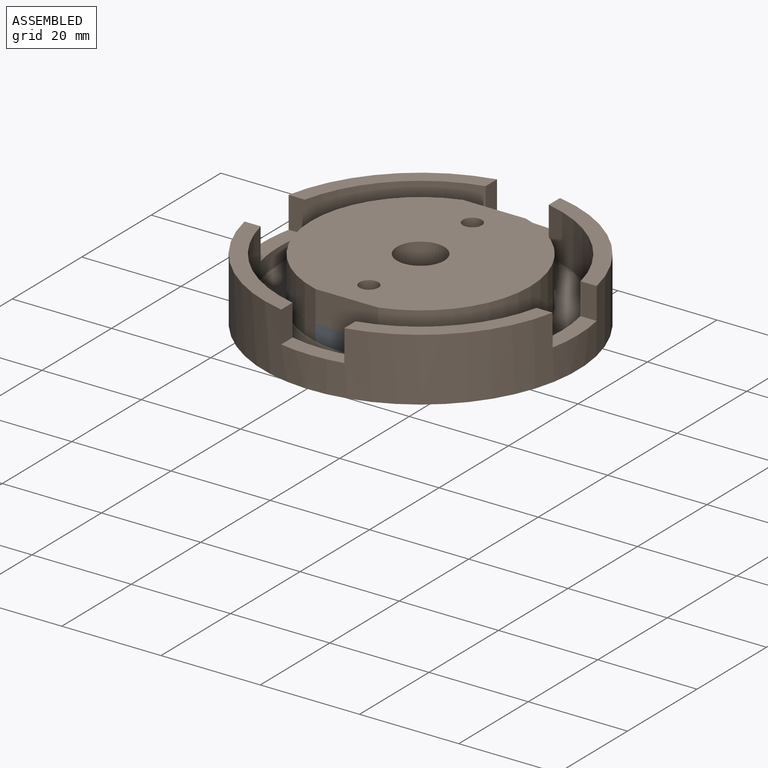
[diagram: assembled view]
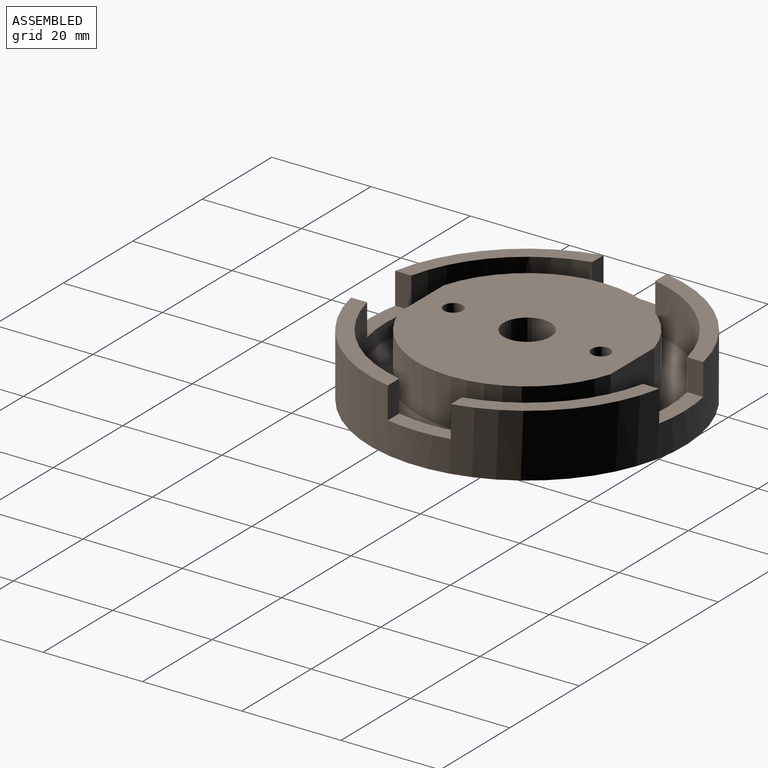
[diagram: assembled view, second angle]
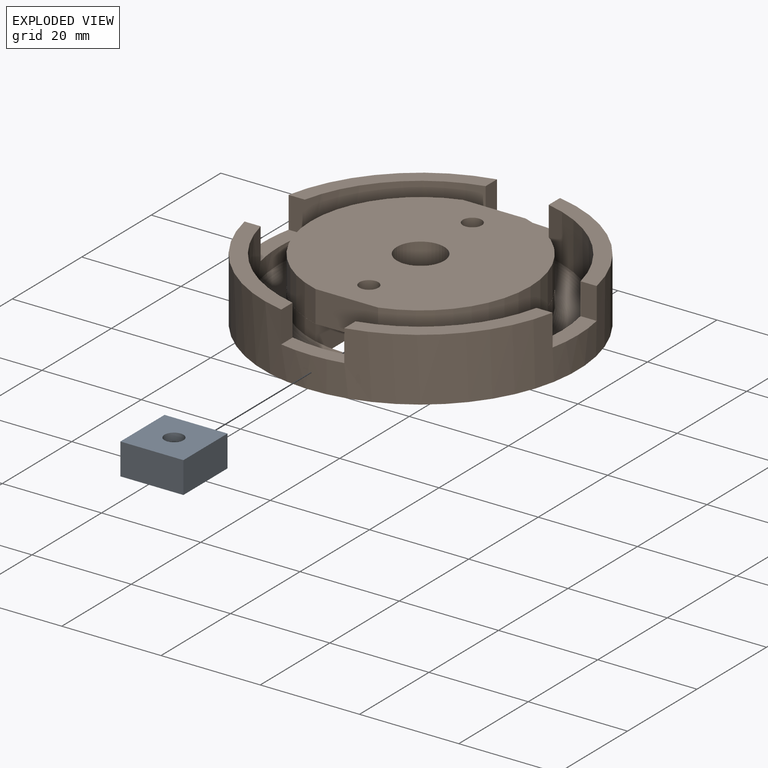
[diagram: exploded view]
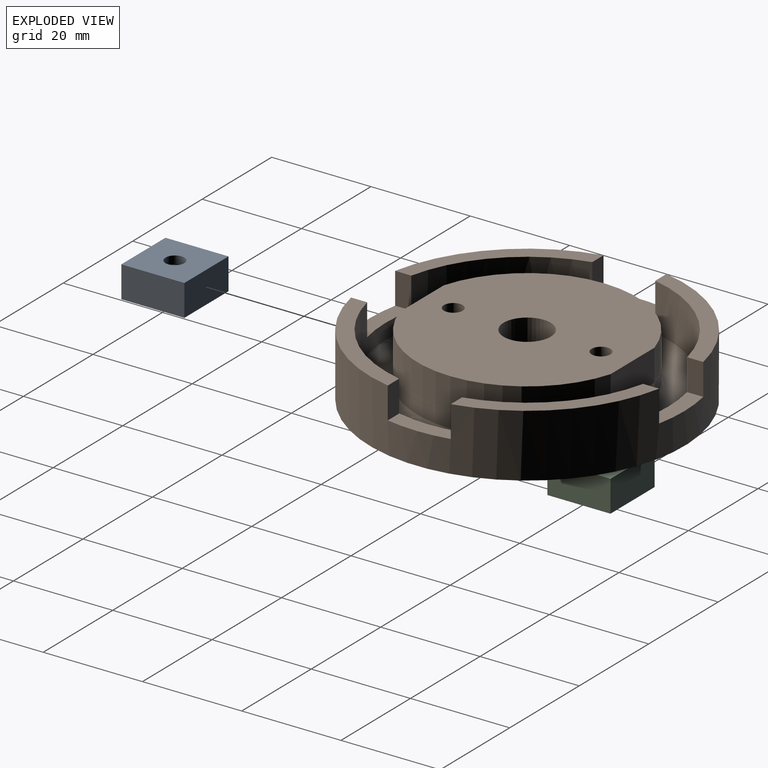
[diagram: exploded view, second angle]
ASSEMBLY  parts=3 mates=6
PART A: 16 faces, bbox 12.7x6.4x12.7 mm
  f0: plane 12.7x6.35mm, normal (0,0,-1), area 80.6mm2, adj f1,f9,f14,f15
  f1: plane 12.7x6.35mm, normal (1,0,0), area 80.6mm2, adj f0,f2,f14,f15
  f2: plane 12.7x6.35mm, normal (0,0,1), area 80.6mm2, adj f1,f9,f14,f15
  f3: plane 3.18x2.75mm, normal (-1,0,0), area 8.7mm2, adj f4,f8,f10,f12
  f4: plane 5.5x3.18mm, normal (-1,0,0), area 17.5mm2, adj f3,f5,f10,f12
  f5: plane 4.76x3.18mm, normal (-0.5,0,0.87), area 17.5mm2, adj f4,f6,f10,f12
  f6: plane 4.76x3.18mm, normal (0.5,0,0.87), area 17.5mm2, adj f5,f7,f10,f12
  f7: plane 8.25x3.18mm, normal (1,0,0), area 26.2mm2, adj f6,f8,f10,f12
  f8: plane 9.53x3.18mm, normal (0,0,-1), area 30.2mm2, adj f3,f7,f10,f12
  f9: plane 12.7x6.35mm, normal (-1,0,0), area 80.6mm2, adj f0,f2,f14,f15
  f10: plane 11x9.53mm, normal (0,-1,0), area 80.2mm2, adj f3,f4,f5,f6,f7,f8,f11
  f11: cylinder r=1.91mm len=3.81mm, axis (0,1,0), area 19mm2, adj f10,f15
  f12: plane 11x9.53mm, normal (0,1,0), area 80.2mm2, adj f3,f4,f5,f6,f7,f8,f13
  f13: cylinder r=1.91mm len=3.81mm, axis (0,-1,0), area 19mm2, adj f12,f14
  f14: plane 12.7x12.7mm, normal (0,-1,0), area 149.9mm2, adj f0,f1,f2,f9,f13
  f15: plane 12.7x12.7mm, normal (0,1,0), area 149.9mm2, adj f0,f1,f2,f9,f11
PART B: 44 faces, bbox 63.4x63.4x12.7 mm
  f0: plane 42.46x15.81mm, normal (0,0,1), area 0.7mm2, adj f6,f15,f19,f42
  f1: plane 12.7x3.89mm, normal (0,0,1), area 40.6mm2, adj f9,f10,f30,f32
  f2: plane 12.7x3.89mm, normal (0,0,1), area 40.6mm2, adj f9,f10,f26,f29
  f3: plane 12.7x3.89mm, normal (0,0,1), area 40.6mm2, adj f9,f10,f24,f27
  f4: plane 12.7x3.89mm, normal (0,0,1), area 40.6mm2, adj f9,f10,f23,f33
  f5: plane 63.37x63.37mm, normal (0,0,-1), area 2618mm2, adj f8,f9,f15,f16,f17,f18,f19,f20
  f6: cylinder r=22.16mm len=42.46mm, axis (0,0,-1), area 180.2mm2, adj f0,f11,f15,f19
  f7: plane 15.88x15.88mm, normal (0,0,-1), area 126.7mm2, adj f8,f14
  f8: cylinder r=7.94mm len=15.88mm, axis (0,0,-1), area 248.3mm2, adj f5,f7
  f9: cylinder r=31.69mm len=63.37mm, axis (0,0,-1), area 2203.7mm2, adj f1,f2,f3,f4,f5,f23,f24,f25
  f10: cylinder r=28.51mm len=57.02mm, axis (0,0,-1), area 1381mm2, adj f1,f2,f3,f4,f11,f23,f24,f25
  f11: torus R=25.34mm, axis (0,0,-1), area 1355.1mm2, adj f6,f10,f12,f17,f21
  f12: cylinder r=22.16mm len=42.46mm, axis (0,0,-1), area 180.2mm2, adj f11,f13,f16,f20
  f13: plane 42.46x15.81mm, normal (0,0,1), area 0.7mm2, adj f12,f16,f20,f38
  f14: cylinder r=4.76mm len=9.53mm, axis (0,0,1), area 231.1mm2, adj f7,f43
  f15: plane 12.7x6.35mm, normal (-1,0,0), area 80.6mm2, adj f0,f5,f6,f17,f18,f35
  f16: plane 12.7x6.35mm, normal (1,0,0), area 80.6mm2, adj f5,f12,f13,f17,f18,f35
  f17: cylinder r=22.16mm len=12.7mm, axis (0,0,1), area 40.9mm2, adj f5,f11,f15,f16
  f18: plane 12.7x6.35mm, normal (0,1,0), area 80.6mm2, adj f5,f15,f16,f35
  f19: plane 12.7x6.35mm, normal (-1,0,0), area 80.6mm2, adj f0,f5,f6,f21,f22,f36
  f20: plane 12.7x6.35mm, normal (1,0,0), area 80.6mm2, adj f5,f12,f13,f21,f22,f36
  f21: cylinder r=22.16mm len=12.7mm, axis (0,0,1), area 40.9mm2, adj f5,f11,f19,f20
  f22: plane 12.7x6.35mm, normal (0,-1,0), area 80.6mm2, adj f5,f19,f20,f36
  f23: plane 6.35x3.25mm, normal (0,-1,0), area 20.6mm2, adj f4,f9,f10,f25
  f24: plane 6.35x3.25mm, normal (-1,0,0), area 20.6mm2, adj f3,f9,f10,f25
  f25: plane 24.69x24.69mm, normal (0,0,1), area 109.5mm2, adj f9,f10,f23,f24
  f26: plane 6.35x3.25mm, normal (0,-1,0), area 20.6mm2, adj f2,f9,f10,f28
  f27: plane 6.35x3.25mm, normal (1,0,0), area 20.6mm2, adj f3,f9,f10,f28
  f28: plane 24.69x24.69mm, normal (0,0,1), area 109.5mm2, adj f9,f10,f26,f27
  f29: plane 6.35x3.25mm, normal (0,1,0), area 20.6mm2, adj f2,f9,f10,f31
  f30: plane 6.35x3.25mm, normal (1,0,0), area 20.6mm2, adj f1,f9,f10,f31
  f31: plane 24.69x24.69mm, normal (0,0,1), area 109.5mm2, adj f9,f10,f29,f30
  f32: plane 6.35x3.25mm, normal (-1,0,0), area 20.6mm2, adj f1,f9,f10,f34
  f33: plane 6.35x3.25mm, normal (0,1,0), area 20.6mm2, adj f4,f9,f10,f34
  f34: plane 24.69x24.69mm, normal (0,0,1), area 109.5mm2, adj f9,f10,f32,f33
  f35: plane 12.7x12.7mm, normal (0,0,-1), area 149.9mm2, adj f15,f16,f18,f37,f38,f41,f42
  f36: plane 12.7x12.7mm, normal (0,0,-1), area 149.9mm2, adj f19,f20,f22,f38,f39,f40,f42
  f37: plane 12.61x6.35mm, normal (0,1,0), area 80.1mm2, adj f35,f38,f42,f43
  f38: cylinder r=22.15mm len=42.46mm, axis (0,0,-1), area 360.6mm2, adj f13,f35,f36,f37,f39,f43
  f39: plane 12.61x6.35mm, normal (0,-1,0), area 80.1mm2, adj f36,f38,f42,f43
  f40: cylinder r=1.91mm len=6.35mm, axis (0,0,-1), area 76mm2, adj f36,f43
  f41: cylinder r=1.91mm len=6.35mm, axis (0,0,-1), area 76mm2, adj f35,f43
  f42: cylinder r=22.15mm len=42.46mm, axis (0,0,-1), area 360.6mm2, adj f0,f35,f36,f37,f39,f43
  f43: plane 44.3x42.46mm, normal (0,0,1), area 1431.6mm2, adj f14,f37,f38,f39,f40,f41,f42
PART C: same geometry as A
PLACE A rot(axis=(1,0,0),90deg) t=(-8.34,-35.12,-9.85)mm
PLACE B rot(axis=(0.24,0.94,0.25),0deg) t=(-1.99,-13.89,-8.26)mm
PLACE C rot(axis=(-1,0,0),90deg) t=(-8.34,7.35,-13.02)mm
MATE planar A.f1 <-> B.f19  axis (1,0,0) through (4.36,-28.77,-11.44)mm
MATE planar C.f11 <-> B.f5  axis (0,0,-1) through (-1.99,1,-14.61)mm
MATE planar A.f11 <-> B.f5  axis (0,0,-1) through (-1.99,-28.77,-14.61)mm
MATE planar A.f0 <-> B.f22  axis (0,1,0) through (-1.99,-22.42,-11.44)mm
MATE fastened B.f18 <-> C.f0  axis (0,1,0) through (-1.99,-5.35,-11.44)mm
MATE planar C.f0 <-> B.f18  axis (0,-1,0) through (-1.99,-5.35,-11.44)mm
